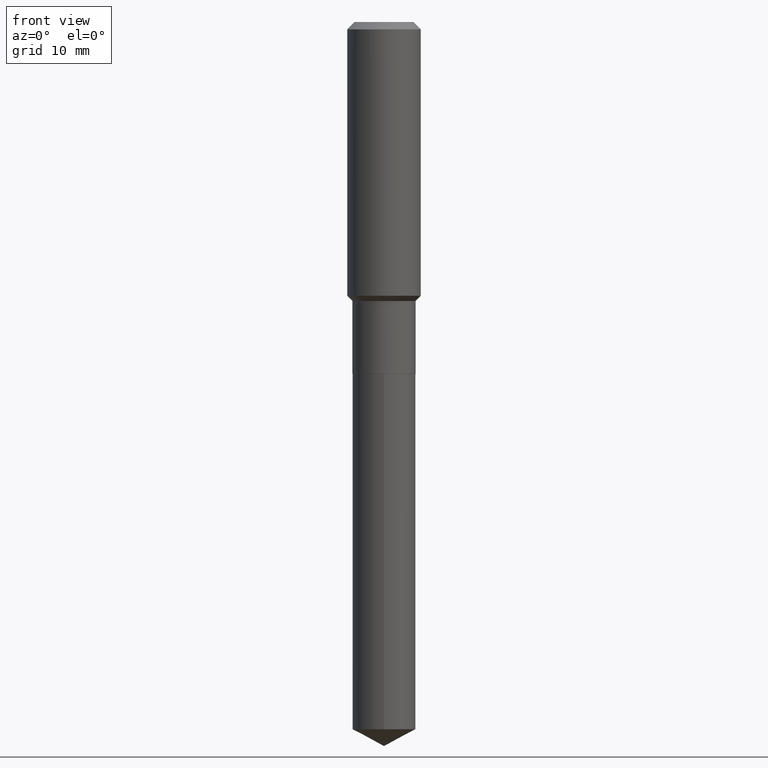
[diagram: clean part render]
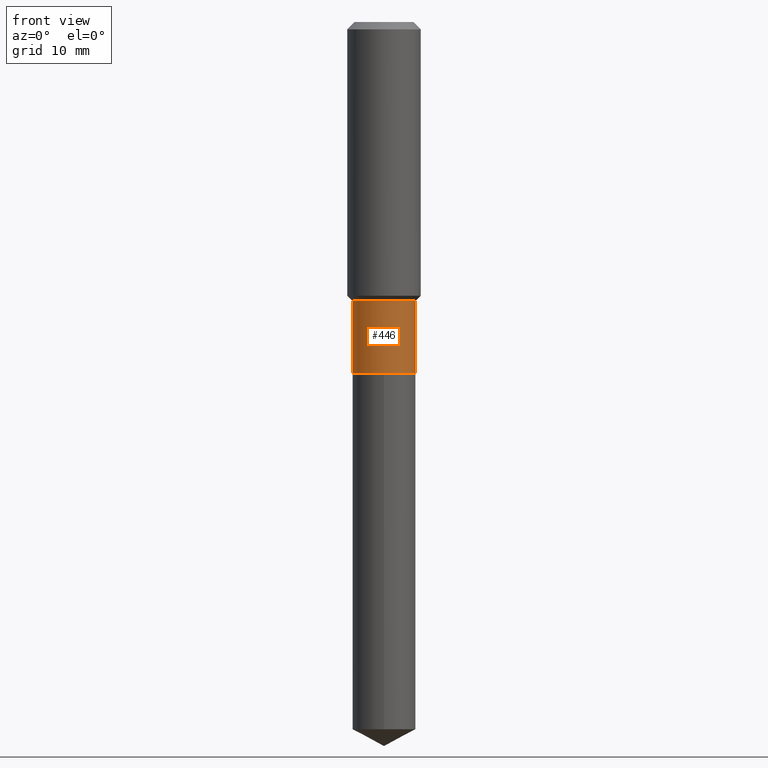
[diagram: same view with one face highlighted and labeled with its STEP entity id]
A machine part, front view. The second image highlights one B-rep face of the part: STEP entity #446.
In plain terms, the highlighted cylindrical surface (edge-blend (fillet) strip) has radius 5.1587 mm, axis along (-0, 0, 1).
Its self-contained STEP definition (entity closure, byte-faithful):
#24 = VECTOR ( 'NONE', #61, 39.37007874015748143 ) ;
#28 = ORIENTED_EDGE ( 'NONE', *, *, #358, .T. ) ;
#37 = LINE ( 'NONE', #159, #478 ) ;
#51 = VERTEX_POINT ( 'NONE', #114 ) ;
#60 = VERTEX_POINT ( 'NONE', #455 ) ;
#61 = DIRECTION ( 'NONE',  ( -2.445468806185136877E-29, 3.491481338843145188E-15, 1.000000000000000000 ) ) ;
#114 = CARTESIAN_POINT ( 'NONE',  ( -0.2031000000000000028, -5.621551044686456796E-15, -2.256699999999999928 ) ) ;
#126 = AXIS2_PLACEMENT_3D ( 'NONE', #148, #258, #232 ) ;
#137 = EDGE_CURVE ( 'NONE', #51, #60, #37, .T. ) ;
#148 = CARTESIAN_POINT ( 'NONE',  ( 5.518689454917996847E-29, -7.879225937367325807E-15, -2.256699999999999928 ) ) ;
#159 = CARTESIAN_POINT ( 'NONE',  ( -0.2031000000000000028, 1.443112296328763497E-15, -9.990357168307714203E-30 ) ) ;
#179 = CARTESIAN_POINT ( 'NONE',  ( 0.2030999999999999750, -7.668340464501195554E-15, -1.790100000000000025 ) ) ;
#189 = EDGE_CURVE ( 'NONE', #60, #429, #228, .T. ) ;
#228 = CIRCLE ( 'NONE', #458, 0.2030999999999999750 ) ;
#232 = DIRECTION ( 'NONE',  ( 1.000000000000000000, -6.982962677686269866E-15, 0.000000000000000000 ) ) ;
#240 = VERTEX_POINT ( 'NONE', #315 ) ;
#254 = FACE_OUTER_BOUND ( 'NONE', #442, .T. ) ;
#257 = ORIENTED_EDGE ( 'NONE', *, *, #368, .T. ) ;
#258 = DIRECTION ( 'NONE',  ( -2.445468806185136597E-29, 3.491481338843145583E-15, 1.000000000000000000 ) ) ;
#268 = CARTESIAN_POINT ( 'NONE',  ( 4.377633709952013450E-29, -6.250100744663115568E-15, -1.790100000000000025 ) ) ;
#287 = DIRECTION ( 'NONE',  ( -2.445468806185136597E-29, 3.491481338843145583E-15, 1.000000000000000000 ) ) ;
#315 = CARTESIAN_POINT ( 'NONE',  ( 0.2031000000000000028, -9.297465657205407371E-15, -2.256699999999999928 ) ) ;
#319 = DIRECTION ( 'NONE',  ( 1.000000000000000000, -6.982962677686266711E-15, 4.876176775795935793E-29 ) ) ;
#321 = ORIENTED_EDGE ( 'NONE', *, *, #137, .F. ) ;
#334 = AXIS2_PLACEMENT_3D ( 'NONE', #466, #287, #319 ) ;
#342 = DIRECTION ( 'NONE',  ( 1.000000000000000000, -6.982962677686265922E-15, 0.000000000000000000 ) ) ;
#358 = EDGE_CURVE ( 'NONE', #240, #429, #384, .T. ) ;
#368 = EDGE_CURVE ( 'NONE', #51, #240, #482, .T. ) ;
#373 = DIRECTION ( 'NONE',  ( -2.445468806185136597E-29, 3.491481338843145583E-15, 1.000000000000000000 ) ) ;
#376 = DIRECTION ( 'NONE',  ( -2.445468806185136877E-29, 3.491481338843145188E-15, 1.000000000000000000 ) ) ;
#384 = LINE ( 'NONE', #415, #24 ) ;
#388 = ORIENTED_EDGE ( 'NONE', *, *, #189, .F. ) ;
#415 = CARTESIAN_POINT ( 'NONE',  ( 0.2031000000000000028, -1.418239719838080775E-15, 9.903515031641546145E-30 ) ) ;
#429 = VERTEX_POINT ( 'NONE', #179 ) ;
#430 = CYLINDRICAL_SURFACE ( 'NONE', #334, 0.2031000000000000028 ) ;
#442 = EDGE_LOOP ( 'NONE', ( #321, #257, #28, #388 ) ) ;
#446 = ADVANCED_FACE ( 'NONE', ( #254 ), #430, .T. ) ;
#455 = CARTESIAN_POINT ( 'NONE',  ( -0.2030999999999999750, -5.621551044686456796E-15, -1.790100000000000025 ) ) ;
#458 = AXIS2_PLACEMENT_3D ( 'NONE', #268, #373, #342 ) ;
#466 = CARTESIAN_POINT ( 'NONE',  ( 0.000000000000000000, 0.000000000000000000, 0.000000000000000000 ) ) ;
#478 = VECTOR ( 'NONE', #376, 39.37007874015748143 ) ;
#482 = CIRCLE ( 'NONE', #126, 0.2031000000000000028 ) ;